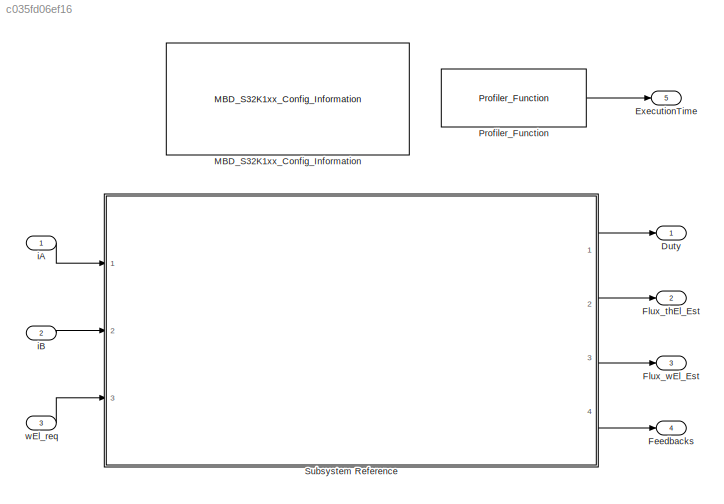
MODEL slx_c035fd06ef16
KIND model
CONFIG AbsTol = auto
CONFIG EnableMultiTasking = off
CONFIG FixedStep = Tctr
CONFIG InitFcn = mbd_s32k_consistency_checks(bdroot(gcs));
CONFIG MaxStep = auto
CONFIG MinStep = auto
CONFIG RelTol = 1e-3
CONFIG SampleTimeConstraint = Unconstrained
CONFIG SolverName = FixedStepDiscrete
CONFIG StartTime = 0.0
CONFIG StopTime = 10.0
BLOCK [Outport] Duty
  OutDataTypeStr = single
  PortDimensions = 3
BLOCK [Outport] ExecutionTime
  OutDataTypeStr = uint32
  Port = 5
  PortDimensions = 1
BLOCK [Outport] Feedbacks
  OutDataTypeStr = single
  Port = 4
  PortDimensions = 8
BLOCK [Outport] Flux_thEl_Est
  OutDataTypeStr = single
  Port = 2
  PortDimensions = 1
BLOCK [Outport] Flux_wEl_Est
  OutDataTypeStr = single
  Port = 3
  PortDimensions = 1
BLOCK [Reference] MBD_S32K1xx_Config_Information  REF=mbd_s32k1xx_ec_toolbox/MBD_S32K1xx_Config_Information
  Ports = []
  SourceBlock = mbd_s32k1xx_ec_toolbox/MBD_S32K1xx_Config_Information
  SourceType = MBDTBX_EC_S32K
BLOCK [Reference] Profiler_Function  REF=mbd_s32k1xx_ec_toolbox/Utility Blocks/Profiler_Function
  Ports = [0, 1]
  SourceBlock = mbd_s32k1xx_ec_toolbox/Utility Blocks/Profiler_Function
  SourceType = profiler_s32k_func
BLOCK [SubSystem] Subsystem Reference
  Ports = [3, 4]
  ReferencedSubsystem = FOC_Sub_CoreAlgoithm
  RequestExecContextInheritance = off
BLOCK [Inport] iA
  OutDataTypeStr = single
  PortDimensions = 1
BLOCK [Inport] iB
  OutDataTypeStr = single
  Port = 2
  PortDimensions = 1
BLOCK [Inport] wEl_req
  OutDataTypeStr = single
  Port = 3
  PortDimensions = 1
LINE Profiler_Function:1 -> ExecutionTime:1
LINE Subsystem Reference:1 -> Duty:1
LINE Subsystem Reference:2 -> Flux_thEl_Est:1
LINE Subsystem Reference:3 -> Flux_wEl_Est:1
LINE Subsystem Reference:4 -> Feedbacks:1
LINE iA:1 -> Subsystem Reference:1
LINE iB:1 -> Subsystem Reference:2
LINE wEl_req:1 -> Subsystem Reference:3
